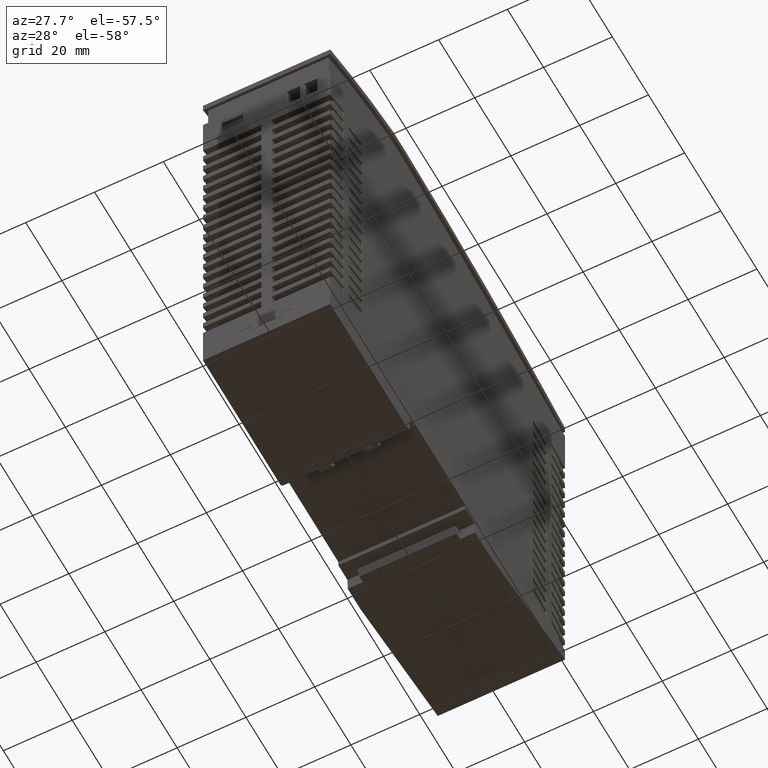
[diagram: clean part render]
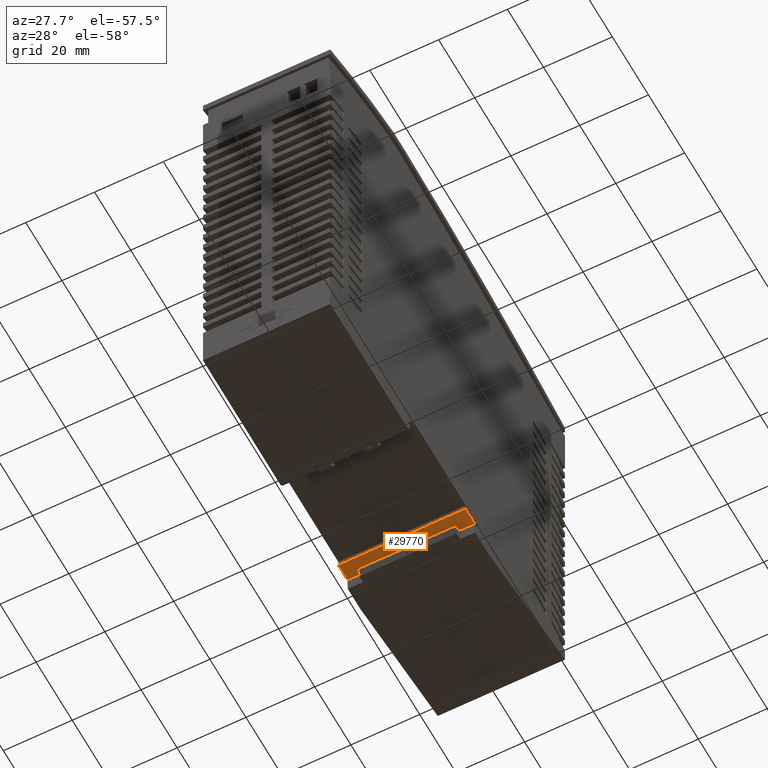
[diagram: same view with one face highlighted and labeled with its STEP entity id]
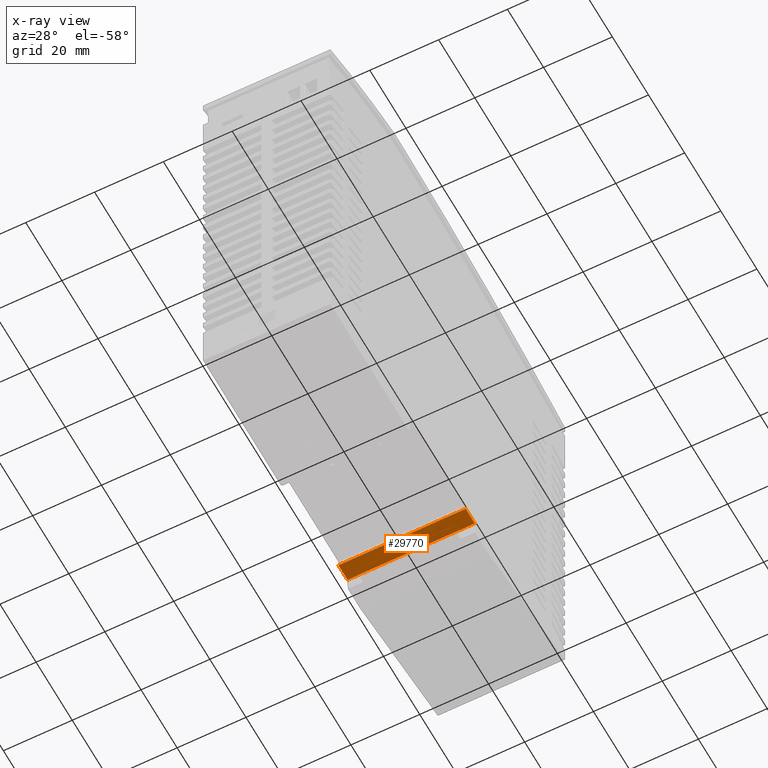
[diagram: x-ray of the same camera — body ghosted, the highlighted face saturated]
A machine part, auxiliary view. The second image highlights one B-rep face of the part: STEP entity #29770.
The next image is the same camera in x-ray: the body ghosted, the highlighted face saturated — about 0% of this face is hidden behind the body in this view.
In plain terms, the highlighted planar face has unit normal (0, 0, 1).
Its self-contained STEP definition (entity closure, byte-faithful):
#12880=CARTESIAN_POINT('',(0.0838524468500079,-1.4210854715202E-13,8.));
#12890=VERTEX_POINT('',#12880);
#27430=CARTESIAN_POINT('',(-4.91614755314711,-2.8421709430404E-13,8.));
#27440=VERTEX_POINT('',#27430);
#27470=CARTESIAN_POINT('',(-14.9,0.,8.));
#27480=DIRECTION('',(1.,0.,0.));
#27490=VECTOR('',#27480,1.);
#27500=LINE('',#27470,#27490);
#27510=EDGE_CURVE('',#27440,#12890,#27500,.T.);
#28090=CARTESIAN_POINT('',(0.0838524468500008,0.,0.));
#28100=DIRECTION('',(0.,0.,-1.));
#28110=VECTOR('',#28100,1.);
#28120=LINE('',#28090,#28110);
#28130=CARTESIAN_POINT('',(0.0838524468500008,-1.4210854715202E-14,45.))
;
#28140=VERTEX_POINT('',#28130);
#28150=EDGE_CURVE('',#28140,#12890,#28120,.T.);
#29540=CARTESIAN_POINT('',(-4.916147553147,0.,4.2999976));
#29550=DIRECTION('',(-0.,1.,0.));
#29560=DIRECTION('',(1.,0.,0.));
#29570=AXIS2_PLACEMENT_3D('',#29540,#29550,#29560);
#29580=PLANE('',#29570);
#29590=ORIENTED_EDGE('',*,*,#28150,.F.);
#29600=ORIENTED_EDGE('',*,*,#27510,.T.);
#29610=CARTESIAN_POINT('',(-4.916147553147,0.,4.2999976));
#29620=DIRECTION('',(0.,0.,1.));
#29630=VECTOR('',#29620,1.);
#29640=LINE('',#29610,#29630);
#29650=CARTESIAN_POINT('',(-4.91614755314713,0.,45.));
#29660=VERTEX_POINT('',#29650);
#29670=EDGE_CURVE('',#27440,#29660,#29640,.T.);
#29680=ORIENTED_EDGE('',*,*,#29670,.F.);
#29690=CARTESIAN_POINT('',(-14.9,0.,45.));
#29700=DIRECTION('',(1.,0.,0.));
#29710=VECTOR('',#29700,1.);
#29720=LINE('',#29690,#29710);
#29730=EDGE_CURVE('',#29660,#28140,#29720,.T.);
#29740=ORIENTED_EDGE('',*,*,#29730,.F.);
#29750=EDGE_LOOP('',(#29740,#29680,#29600,#29590));
#29760=FACE_OUTER_BOUND('',#29750,.T.);
#29770=ADVANCED_FACE('',(#29760),#29580,.F.);